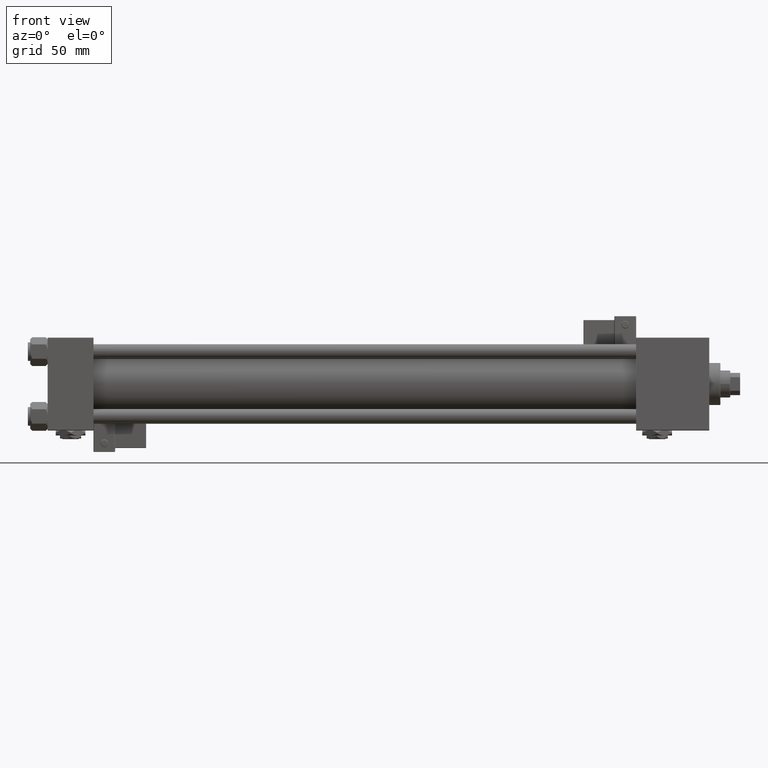
[diagram: clean part render]
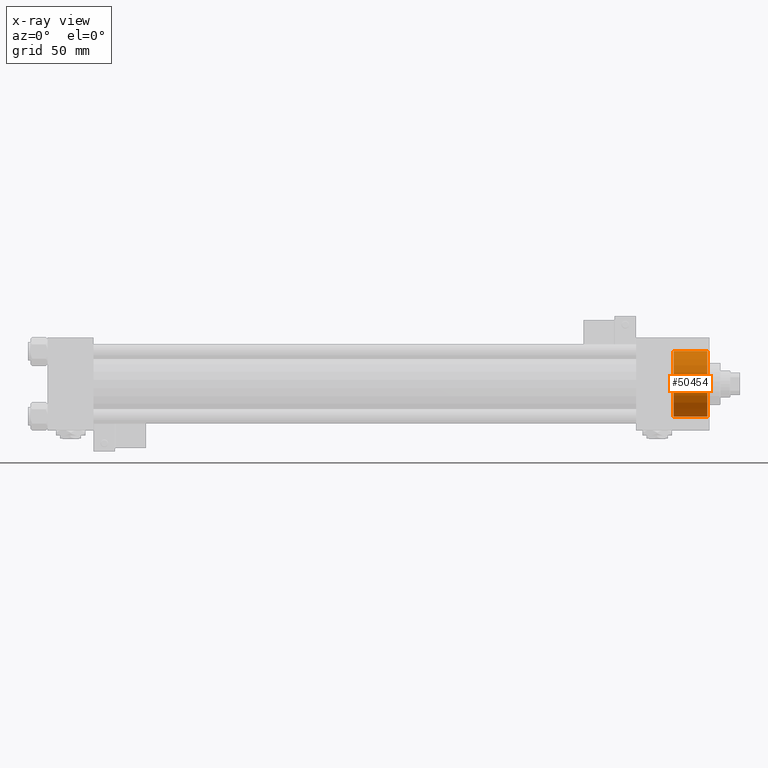
[diagram: x-ray — body ghosted, one internal face saturated and labeled with its STEP entity id]
A machine part, front view, then the same camera in x-ray: the body is ghosted and one INTERNAL B-rep face — a face not visible from any outside direction — is saturated and labeled: STEP entity #50454.
In plain terms, the highlighted cylindrical surface (edge-blend (fillet) strip) has radius 26.5 mm, axis along (1, 0, 0).
Its self-contained STEP definition (entity closure, byte-faithful):
#2744 = CARTESIAN_POINT ( 'NONE',  ( 505.3000000000000682, 0.000000000000000000, -26.50000000000000355 ) ) ;
#4401 = CARTESIAN_POINT ( 'NONE',  ( 505.3000000000000682, 0.000000000000000000, 0.000000000000000000 ) ) ;
#4723 = CARTESIAN_POINT ( 'NONE',  ( 532.5000000000000000, 0.000000000000000000, 0.000000000000000000 ) ) ;
#5398 = DIRECTION ( 'NONE',  ( 1.000000000000000000, -0.000000000000000000, -0.000000000000000000 ) ) ;
#5692 = CARTESIAN_POINT ( 'NONE',  ( 505.3000000000000682, 3.245314017740486554E-15, 26.50000000000000355 ) ) ;
#7965 = CARTESIAN_POINT ( 'NONE',  ( 532.5000000000000000, 0.000000000000000000, -26.50000000000000355 ) ) ;
#9168 = EDGE_LOOP ( 'NONE', ( #53220, #32212, #32399, #25729 ) ) ;
#9831 = AXIS2_PLACEMENT_3D ( 'NONE', #32418, #49614, #28182 ) ;
#16710 = CARTESIAN_POINT ( 'NONE',  ( 505.3000000000000682, 0.000000000000000000, -26.50000000000000355 ) ) ;
#18102 = CARTESIAN_POINT ( 'NONE',  ( 532.5000000000000000, 3.245314017740486554E-15, 26.50000000000000355 ) ) ;
#20761 = DIRECTION ( 'NONE',  ( 1.000000000000000000, -0.000000000000000000, -0.000000000000000000 ) ) ;
#21345 = DIRECTION ( 'NONE',  ( 0.000000000000000000, 0.000000000000000000, 1.000000000000000000 ) ) ;
#22446 = EDGE_CURVE ( 'NONE', #42782, #26847, #52604, .T. ) ;
#25251 = FACE_OUTER_BOUND ( 'NONE', #9168, .T. ) ;
#25729 = ORIENTED_EDGE ( 'NONE', *, *, #38436, .F. ) ;
#26081 = EDGE_CURVE ( 'NONE', #33428, #42782, #27100, .T. ) ;
#26847 = VERTEX_POINT ( 'NONE', #7965 ) ;
#27100 = LINE ( 'NONE', #5692, #49005 ) ;
#28182 = DIRECTION ( 'NONE',  ( 0.000000000000000000, 0.000000000000000000, -1.000000000000000000 ) ) ;
#29117 = LINE ( 'NONE', #16710, #50138 ) ;
#29154 = AXIS2_PLACEMENT_3D ( 'NONE', #4723, #38549, #21345 ) ;
#32212 = ORIENTED_EDGE ( 'NONE', *, *, #26081, .T. ) ;
#32399 = ORIENTED_EDGE ( 'NONE', *, *, #22446, .T. ) ;
#32418 = CARTESIAN_POINT ( 'NONE',  ( 505.3000000000000682, 0.000000000000000000, 0.000000000000000000 ) ) ;
#33428 = VERTEX_POINT ( 'NONE', #48462 ) ;
#35976 = CIRCLE ( 'NONE', #9831, 26.50000000000000355 ) ;
#38436 = EDGE_CURVE ( 'NONE', #52937, #26847, #29117, .T. ) ;
#38549 = DIRECTION ( 'NONE',  ( 1.000000000000000000, 0.000000000000000000, 0.000000000000000000 ) ) ;
#40602 = AXIS2_PLACEMENT_3D ( 'NONE', #4401, #20761, #55441 ) ;
#42481 = CYLINDRICAL_SURFACE ( 'NONE', #40602, 26.50000000000000355 ) ;
#42782 = VERTEX_POINT ( 'NONE', #18102 ) ;
#47226 = EDGE_CURVE ( 'NONE', #33428, #52937, #35976, .T. ) ;
#48462 = CARTESIAN_POINT ( 'NONE',  ( 505.3000000000000682, 3.245314017740486554E-15, 26.50000000000000355 ) ) ;
#49005 = VECTOR ( 'NONE', #5398, 1000.000000000000000 ) ;
#49614 = DIRECTION ( 'NONE',  ( 1.000000000000000000, 0.000000000000000000, 0.000000000000000000 ) ) ;
#50138 = VECTOR ( 'NONE', #50558, 1000.000000000000000 ) ;
#50454 = ADVANCED_FACE ( 'NONE', ( #25251 ), #42481, .F. ) ;
#50558 = DIRECTION ( 'NONE',  ( 1.000000000000000000, -0.000000000000000000, -0.000000000000000000 ) ) ;
#52604 = CIRCLE ( 'NONE', #29154, 26.50000000000000355 ) ;
#52937 = VERTEX_POINT ( 'NONE', #2744 ) ;
#53220 = ORIENTED_EDGE ( 'NONE', *, *, #47226, .F. ) ;
#55441 = DIRECTION ( 'NONE',  ( 0.000000000000000000, 0.000000000000000000, -1.000000000000000000 ) ) ;